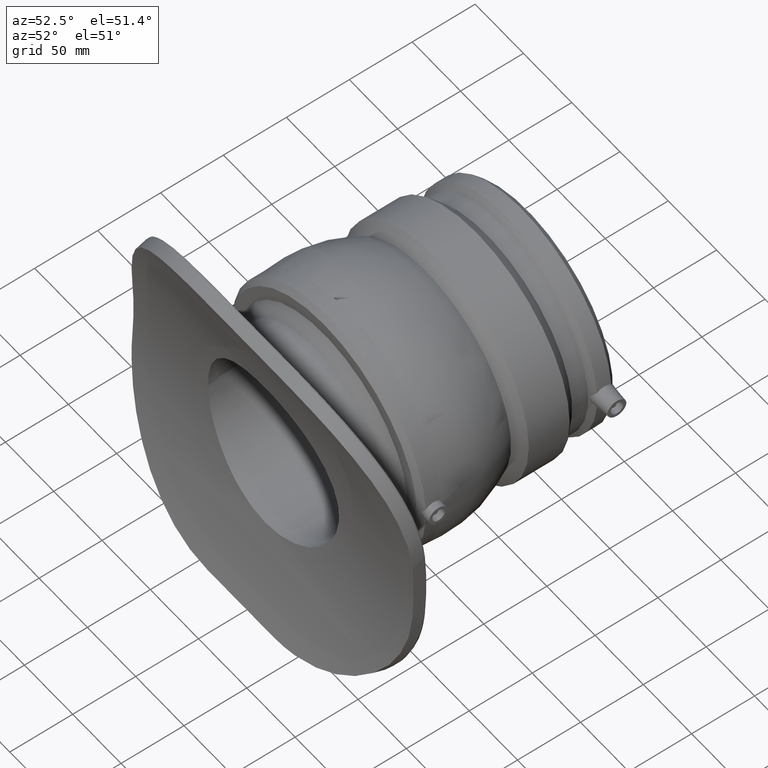
[diagram: clean part render]
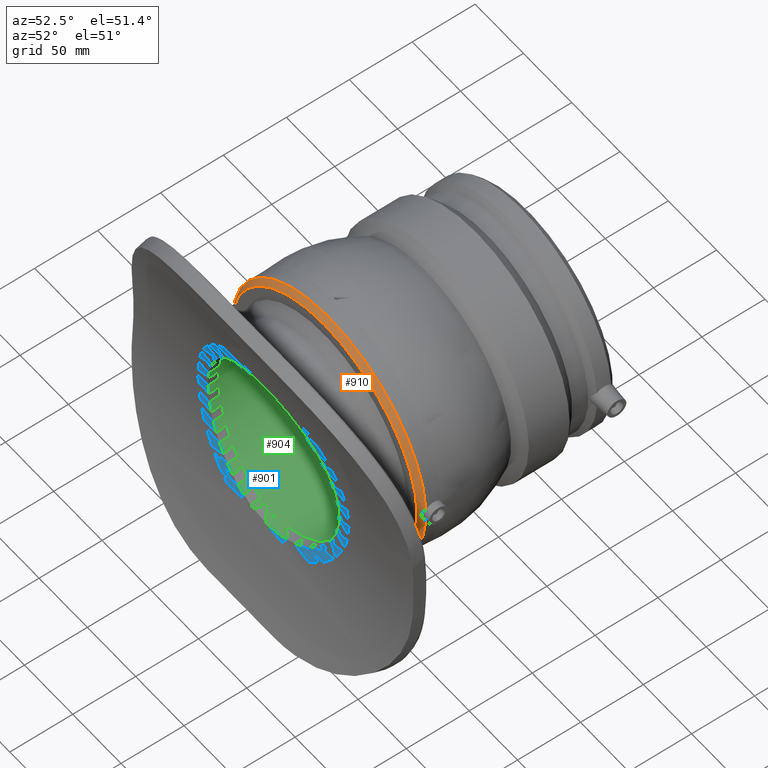
[diagram: same view with three faces highlighted in distinct colors, each labeled with its STEP entity id]
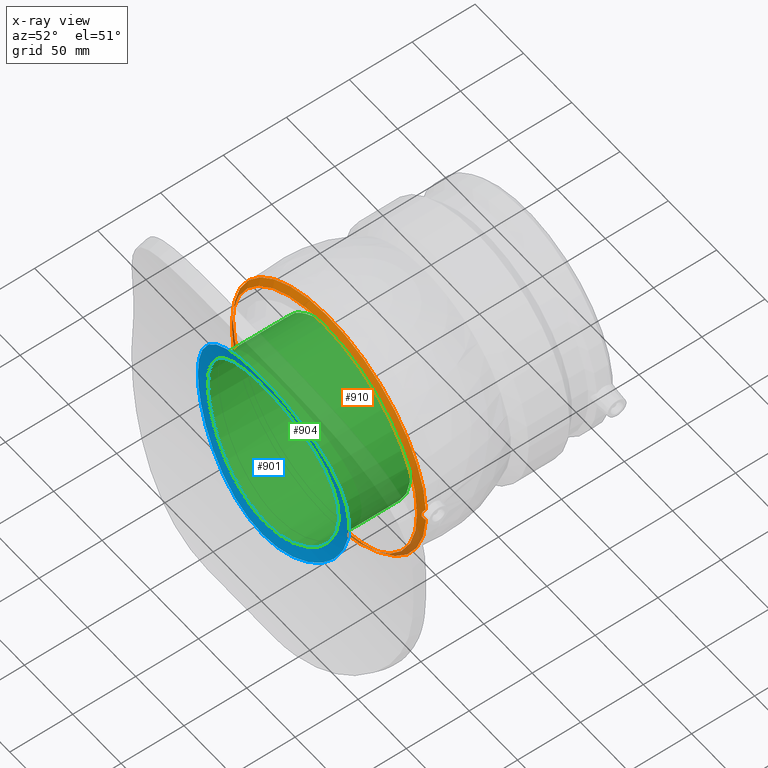
[diagram: x-ray of the same camera — body ghosted, the three highlighted faces saturated]
A machine part, auxiliary view with three faces highlighted in distinct colors.
The next image is the same camera in x-ray (body ghosted, the three faces saturated) — at least one of them is partly hidden behind the body in this view.
Their STEP definitions:

[orange] entity #910 — the highlighted conical surface has half-angle 45 deg.
#91=B_SPLINE_CURVE_WITH_KNOTS('',3,(#1431,#1432,#1433,#1434,#1435,#1436,
#1437,#1438,#1439,#1440,#1441,#1442,#1443,#1444),.UNSPECIFIED.,.F.,.F.,
(4,2,2,2,2,2,4),(1.43644840975488,1.48361921660514,1.75200094608469,2.02038267556424,
2.28876440504379,2.55714613452334,2.60431694137361),.UNSPECIFIED.);
#128=CONICAL_SURFACE('',#1004,98.,45.0000000000002);
#155=FACE_BOUND('',#308,.T.);
#217=FACE_OUTER_BOUND('',#307,.T.);
#307=EDGE_LOOP('',(#680,#681));
#308=EDGE_LOOP('',(#682));
#386=CIRCLE('',#1003,96.);
#387=CIRCLE('',#1005,100.);
#436=VERTEX_POINT('',#1429);
#437=VERTEX_POINT('',#1430);
#451=VERTEX_POINT('',#1651);
#521=EDGE_CURVE('',#436,#437,#91,.T.);
#538=EDGE_CURVE('',#451,#451,#386,.T.);
#539=EDGE_CURVE('',#436,#437,#387,.T.);
#680=ORIENTED_EDGE('',*,*,#521,.T.);
#681=ORIENTED_EDGE('',*,*,#539,.F.);
#682=ORIENTED_EDGE('',*,*,#538,.T.);
#910=ADVANCED_FACE('',(#217,#155),#128,.T.);
#1003=AXIS2_PLACEMENT_3D('',#1652,#1167,#1168);
#1004=AXIS2_PLACEMENT_3D('',#1653,#1169,#1170);
#1005=AXIS2_PLACEMENT_3D('',#1654,#1171,#1172);
#1167=DIRECTION('center_axis',(0.,1.,0.));
#1168=DIRECTION('ref_axis',(1.,0.,0.));
#1169=DIRECTION('center_axis',(0.,1.,0.));
#1170=DIRECTION('ref_axis',(-1.,0.,0.));
#1171=DIRECTION('center_axis',(0.,1.,0.));
#1172=DIRECTION('ref_axis',(1.,0.,0.));
#1429=CARTESIAN_POINT('',(99.8688193010284,3.99999999999999,-5.12044250221947));
#1430=CARTESIAN_POINT('',(99.8688193010284,3.99999999999999,5.12044250221947));
#1431=CARTESIAN_POINT('Ctrl Pts',(99.8688193010284,3.99999999999996,-5.1204425022195));
#1432=CARTESIAN_POINT('Ctrl Pts',(99.7818959861448,3.9082146630929,-5.02326245121099));
#1433=CARTESIAN_POINT('Ctrl Pts',(99.6973953848259,3.81883992168129,-4.92339550806257));
#1434=CARTESIAN_POINT('Ctrl Pts',(99.1494407067661,3.23841338256754,-4.2383978073542));
#1435=CARTESIAN_POINT('Ctrl Pts',(98.7157966441593,2.77422953518188,-3.49632662446755));
#1436=CARTESIAN_POINT('Ctrl Pts',(98.1226034603284,2.13608921980018,-1.82512773447306));
#1437=CARTESIAN_POINT('Ctrl Pts',(97.9644709677726,1.96447096777259,-0.894605764931831));
#1438=CARTESIAN_POINT('Ctrl Pts',(97.9644709677726,1.96447096777259,0.894605764931831));
#1439=CARTESIAN_POINT('Ctrl Pts',(98.1226034603284,2.13608921980018,1.82512773447307));
#1440=CARTESIAN_POINT('Ctrl Pts',(98.7157966441593,2.77422953518188,3.49632662446756));
#1441=CARTESIAN_POINT('Ctrl Pts',(99.1494407067661,3.23841338256754,4.2383978073542));
#1442=CARTESIAN_POINT('Ctrl Pts',(99.6973953848259,3.81883992168129,4.92339550806257));
#1443=CARTESIAN_POINT('Ctrl Pts',(99.7818959861448,3.9082146630929,5.023262451211));
#1444=CARTESIAN_POINT('Ctrl Pts',(99.8688193010284,3.99999999999997,5.12044250221951));
#1651=CARTESIAN_POINT('',(-96.,0.,0.));
#1652=CARTESIAN_POINT('Origin',(0.,0.,0.));
#1653=CARTESIAN_POINT('Origin',(0.,1.99999999999999,0.));
#1654=CARTESIAN_POINT('Origin',(0.,3.99999999999999,0.));

[blue] entity #901 — the highlighted cylindrical surface (partial cylindrical patch) has radius 355 mm, axis along (-1, 0, 0).
#95=B_SPLINE_CURVE_WITH_KNOTS('',3,(#1496,#1497,#1498,#1499,#1500,#1501,
#1502,#1503,#1504,#1505,#1506,#1507,#1508,#1509,#1510,#1511,#1512,#1513,
#1514,#1515,#1516,#1517,#1518,#1519,#1520,#1521,#1522,#1523,#1524,#1525,
#1526,#1527,#1528,#1529,#1530,#1531,#1532,#1533,#1534,#1535,#1536,#1537,
#1538,#1539,#1540,#1541,#1542,#1543,#1544,#1545,#1546,#1547,#1548,#1549,
#1550,#1551,#1552,#1553,#1554,#1555,#1556,#1557,#1558,#1559,#1560,#1561),
 .UNSPECIFIED.,.T.,.F.,(4,2,2,2,2,2,2,2,2,2,2,2,2,2,2,2,2,2,2,2,2,2,2,2,
2,2,2,2,2,2,2,2,4),(0.,1.48194512866162,2.96389025732324,4.44583538598486,
5.92778051464647,7.40960113700903,8.89142175937159,10.3732423817341,11.8550630040967,
13.3368836264593,14.8187042488218,16.3005248711844,17.7823454935469,19.2642906222086,
20.7462357508702,22.2281808795318,23.7101260081934,25.192071136855,26.6740162655166,
28.1559613941783,29.6379065228399,31.1197271452024,32.601547767565,34.0833683899276,
35.5651890122901,37.0470096346527,38.5288302570152,40.0106508793778,41.4924715017404,
42.974416630402,44.4563617590636,45.9383068877252,47.4202520163868),
 .UNSPECIFIED.);
#96=B_SPLINE_CURVE_WITH_KNOTS('',3,(#1563,#1564,#1565,#1566,#1567,#1568,
#1569,#1570,#1571,#1572,#1573,#1574,#1575,#1576,#1577,#1578,#1579,#1580,
#1581,#1582,#1583,#1584,#1585,#1586,#1587,#1588,#1589,#1590,#1591,#1592,
#1593,#1594,#1595,#1596,#1597,#1598,#1599,#1600,#1601,#1602,#1603,#1604,
#1605,#1606,#1607,#1608,#1609,#1610,#1611,#1612,#1613,#1614,#1615,#1616,
#1617,#1618,#1619,#1620,#1621,#1622,#1623,#1624,#1625,#1626,#1627,#1628),
 .UNSPECIFIED.,.T.,.F.,(4,2,2,2,2,2,2,2,2,2,2,2,2,2,2,2,2,2,2,2,2,2,2,2,
2,2,2,2,2,2,2,2,4),(0.,1.28418362988211,2.56836725976423,3.85255088964634,
5.13673451952846,6.42085779522608,7.70498107092371,8.98910434662134,10.273227622319,
11.5573508980166,12.8414741737142,14.1255974494118,15.4097207251095,16.6939043549916,
17.9780879848737,19.2622716147558,20.5464552446379,21.83063887452,23.1148225044022,
24.3990061342843,25.6831897641664,26.967313039864,28.2514363155616,29.5355595912593,
30.8196828669569,32.1038061426545,33.3879294183522,34.6720526940498,35.9561759697474,
37.2403595996295,38.5245432295116,39.8087268593938,41.0929104892759),
 .UNSPECIFIED.);
#145=FACE_BOUND('',#290,.T.);
#171=CYLINDRICAL_SURFACE('',#987,355.);
#209=FACE_OUTER_BOUND('',#289,.T.);
#289=EDGE_LOOP('',(#662));
#290=EDGE_LOOP('',(#663));
#442=VERTEX_POINT('',#1495);
#443=VERTEX_POINT('',#1562);
#529=EDGE_CURVE('',#442,#442,#95,.T.);
#530=EDGE_CURVE('',#443,#443,#96,.T.);
#662=ORIENTED_EDGE('',*,*,#529,.F.);
#663=ORIENTED_EDGE('',*,*,#530,.F.);
#901=ADVANCED_FACE('',(#209,#145),#171,.F.);
#987=AXIS2_PLACEMENT_3D('',#1494,#1135,#1136);
#1135=DIRECTION('center_axis',(-1.,0.,0.));
#1136=DIRECTION('ref_axis',(0.,0.,1.));
#1494=CARTESIAN_POINT('Origin',(145.,-395.4,0.));
#1495=CARTESIAN_POINT('',(0.,-49.1653396899727,-78.4));
#1496=CARTESIAN_POINT('Ctrl Pts',(0.,-49.1653396899727,-78.4));
#1497=CARTESIAN_POINT('Ctrl Pts',(-4.93981709553873,-49.1653396899727,-78.4));
#1498=CARTESIAN_POINT('Ctrl Pts',(-10.0429295583946,-49.0567577797567,-77.9256032869789));
#1499=CARTESIAN_POINT('Ctrl Pts',(-20.1835197370835,-48.6145397147042,-75.9334288267969));
#1500=CARTESIAN_POINT('Ctrl Pts',(-25.2211082487994,-48.2812542472113,-74.416137256067));
#1501=CARTESIAN_POINT('Ctrl Pts',(-34.874082278191,-47.4466689690377,-70.4106837251488));
#1502=CARTESIAN_POINT('Ctrl Pts',(-39.4974676030903,-46.9455282298066,-67.9193378352981));
#1503=CARTESIAN_POINT('Ctrl Pts',(-48.0434040826242,-45.8736953762481,-62.1684624555258));
#1504=CARTESIAN_POINT('Ctrl Pts',(-51.9658184584423,-45.3041028487263,-58.9085248316084));
#1505=CARTESIAN_POINT('Ctrl Pts',(-58.9082331842797,-44.2065023023353,-51.9661101057709));
#1506=CARTESIAN_POINT('Ctrl Pts',(-62.1681381732243,-43.6396685995384,-48.0438313762638));
#1507=CARTESIAN_POINT('Ctrl Pts',(-67.9191441202137,-42.5778585738288,-39.497810060868));
#1508=CARTESIAN_POINT('Ctrl Pts',(-70.4106394658792,-42.083916262806,-34.8742044407308));
#1509=CARTESIAN_POINT('Ctrl Pts',(-74.4162588020605,-41.2639012810846,-25.2207998282419));
#1510=CARTESIAN_POINT('Ctrl Pts',(-75.9335664016045,-40.9378707751718,-20.1830075627893));
#1511=CARTESIAN_POINT('Ctrl Pts',(-77.9256778524673,-40.5057822154889,-10.0423618735945));
#1512=CARTESIAN_POINT('Ctrl Pts',(-78.4,-40.4,-4.93940207454186));
#1513=CARTESIAN_POINT('Ctrl Pts',(-78.4,-40.4,4.93940207454186));
#1514=CARTESIAN_POINT('Ctrl Pts',(-77.9256778524673,-40.5057822154889,10.0423618735945));
#1515=CARTESIAN_POINT('Ctrl Pts',(-75.9335664016045,-40.9378707751718,20.1830075627893));
#1516=CARTESIAN_POINT('Ctrl Pts',(-74.4162588020606,-41.2639012810846,25.2207998282419));
#1517=CARTESIAN_POINT('Ctrl Pts',(-70.4106394658792,-42.083916262806,34.8742044407308));
#1518=CARTESIAN_POINT('Ctrl Pts',(-67.9191441202137,-42.5778585738288,39.497810060868));
#1519=CARTESIAN_POINT('Ctrl Pts',(-62.1681381732243,-43.6396685995384,48.0438313762638));
#1520=CARTESIAN_POINT('Ctrl Pts',(-58.9082331842797,-44.2065023023353,51.9661101057709));
#1521=CARTESIAN_POINT('Ctrl Pts',(-51.9658184584423,-45.3041028487263,58.9085248316084));
#1522=CARTESIAN_POINT('Ctrl Pts',(-48.0434040826242,-45.8736953762481,62.1684624555258));
#1523=CARTESIAN_POINT('Ctrl Pts',(-39.4974676030903,-46.9455282298066,67.9193378352981));
#1524=CARTESIAN_POINT('Ctrl Pts',(-34.8740822781909,-47.4466689690377,70.4106837251488));
#1525=CARTESIAN_POINT('Ctrl Pts',(-25.2211082487993,-48.2812542472112,74.416137256067));
#1526=CARTESIAN_POINT('Ctrl Pts',(-20.1835197370835,-48.6145397147042,75.9334288267969));
#1527=CARTESIAN_POINT('Ctrl Pts',(-10.0429295583946,-49.0567577797566,77.9256032869789));
#1528=CARTESIAN_POINT('Ctrl Pts',(-4.93981709553872,-49.1653396899727,78.4));
#1529=CARTESIAN_POINT('Ctrl Pts',(4.93981709553873,-49.1653396899727,78.4));
#1530=CARTESIAN_POINT('Ctrl Pts',(10.0429295583946,-49.0567577797567,77.9256032869789));
#1531=CARTESIAN_POINT('Ctrl Pts',(20.1835197370835,-48.6145397147042,75.9334288267969));
#1532=CARTESIAN_POINT('Ctrl Pts',(25.2211082487994,-48.2812542472112,74.416137256067));
#1533=CARTESIAN_POINT('Ctrl Pts',(34.874082278191,-47.4466689690377,70.4106837251488));
#1534=CARTESIAN_POINT('Ctrl Pts',(39.4974676030903,-46.9455282298066,67.9193378352981));
#1535=CARTESIAN_POINT('Ctrl Pts',(48.0434040826242,-45.8736953762481,62.1684624555258));
#1536=CARTESIAN_POINT('Ctrl Pts',(51.9658184584423,-45.3041028487263,58.9085248316084));
#1537=CARTESIAN_POINT('Ctrl Pts',(58.9082331842797,-44.2065023023353,51.9661101057709));
#1538=CARTESIAN_POINT('Ctrl Pts',(62.1681381732243,-43.6396685995384,48.0438313762638));
#1539=CARTESIAN_POINT('Ctrl Pts',(67.9191441202137,-42.5778585738288,39.497810060868));
#1540=CARTESIAN_POINT('Ctrl Pts',(70.4106394658792,-42.083916262806,34.8742044407308));
#1541=CARTESIAN_POINT('Ctrl Pts',(74.4162588020605,-41.2639012810846,25.2207998282419));
#1542=CARTESIAN_POINT('Ctrl Pts',(75.9335664016045,-40.9378707751718,20.1830075627893));
#1543=CARTESIAN_POINT('Ctrl Pts',(77.9256778524673,-40.5057822154889,10.0423618735946));
#1544=CARTESIAN_POINT('Ctrl Pts',(78.4,-40.4,4.93940207454188));
#1545=CARTESIAN_POINT('Ctrl Pts',(78.4,-40.4,-4.93940207454186));
#1546=CARTESIAN_POINT('Ctrl Pts',(77.9256778524673,-40.5057822154889,-10.0423618735945));
#1547=CARTESIAN_POINT('Ctrl Pts',(75.9335664016045,-40.9378707751718,-20.1830075627893));
#1548=CARTESIAN_POINT('Ctrl Pts',(74.4162588020606,-41.2639012810846,-25.2207998282419));
#1549=CARTESIAN_POINT('Ctrl Pts',(70.4106394658792,-42.083916262806,-34.8742044407308));
#1550=CARTESIAN_POINT('Ctrl Pts',(67.9191441202137,-42.5778585738288,-39.497810060868));
#1551=CARTESIAN_POINT('Ctrl Pts',(62.1681381732243,-43.6396685995384,-48.0438313762638));
#1552=CARTESIAN_POINT('Ctrl Pts',(58.9082331842798,-44.2065023023353,-51.9661101057709));
#1553=CARTESIAN_POINT('Ctrl Pts',(51.9658184584423,-45.3041028487263,-58.9085248316084));
#1554=CARTESIAN_POINT('Ctrl Pts',(48.0434040826242,-45.8736953762481,-62.1684624555258));
#1555=CARTESIAN_POINT('Ctrl Pts',(39.4974676030903,-46.9455282298066,-67.9193378352981));
#1556=CARTESIAN_POINT('Ctrl Pts',(34.8740822781909,-47.4466689690377,-70.4106837251489));
#1557=CARTESIAN_POINT('Ctrl Pts',(25.2211082487993,-48.2812542472113,-74.416137256067));
#1558=CARTESIAN_POINT('Ctrl Pts',(20.1835197370834,-48.6145397147042,-75.9334288267969));
#1559=CARTESIAN_POINT('Ctrl Pts',(10.0429295583946,-49.0567577797566,-77.9256032869789));
#1560=CARTESIAN_POINT('Ctrl Pts',(4.93981709553871,-49.1653396899727,-78.4));
#1561=CARTESIAN_POINT('Ctrl Pts',(-1.11022302462516E-15,-49.1653396899727,
-78.4));
#1562=CARTESIAN_POINT('',(0.,-46.9735371703234,-68.));
#1563=CARTESIAN_POINT('Ctrl Pts',(0.,-46.9735371703234,-68.));
#1564=CARTESIAN_POINT('Ctrl Pts',(4.28061209960705,-46.9735371703234,-68.));
#1565=CARTESIAN_POINT('Ctrl Pts',(8.70394721315377,-46.8925245465351,-67.5892869237947));
#1566=CARTESIAN_POINT('Ctrl Pts',(17.4961096786961,-46.562192984919,-65.8631653536506));
#1567=CARTESIAN_POINT('Ctrl Pts',(21.8650264282614,-46.3131232840869,-64.548164551849));
#1568=CARTESIAN_POINT('Ctrl Pts',(30.2386633185165,-45.6887696168532,-61.075103654211));
#1569=CARTESIAN_POINT('Ctrl Pts',(34.2502549563989,-45.3135933914119,-58.9142815416259));
#1570=CARTESIAN_POINT('Ctrl Pts',(41.6662210647222,-44.5104360279515,-53.9249344629819));
#1571=CARTESIAN_POINT('Ctrl Pts',(45.0704546924692,-44.0832789086014,-51.0960675489013));
#1572=CARTESIAN_POINT('Ctrl Pts',(51.0959259527379,-43.2595633579804,-45.0705962886325));
#1573=CARTESIAN_POINT('Ctrl Pts',(53.9247772365134,-42.8339536219612,-41.6664283101215));
#1574=CARTESIAN_POINT('Ctrl Pts',(58.9141880153766,-42.0364237674579,-34.2504204184892));
#1575=CARTESIAN_POINT('Ctrl Pts',(61.0750826352883,-41.6652901247154,-30.2387214201588));
#1576=CARTESIAN_POINT('Ctrl Pts',(64.5482240407459,-41.0491111089907,-21.8648755744737));
#1577=CARTESIAN_POINT('Ctrl Pts',(65.8632322771882,-40.8041076526875,-17.4958602756926));
#1578=CARTESIAN_POINT('Ctrl Pts',(67.5893230732144,-40.4794481900596,-8.70367159889857));
#1579=CARTESIAN_POINT('Ctrl Pts',(68.,-40.4,-4.2804109189921));
#1580=CARTESIAN_POINT('Ctrl Pts',(68.,-40.4,4.28041091899208));
#1581=CARTESIAN_POINT('Ctrl Pts',(67.5893230732144,-40.4794481900596,8.70367159889855));
#1582=CARTESIAN_POINT('Ctrl Pts',(65.8632322771882,-40.8041076526875,17.4958602756926));
#1583=CARTESIAN_POINT('Ctrl Pts',(64.5482240407459,-41.0491111089907,21.8648755744737));
#1584=CARTESIAN_POINT('Ctrl Pts',(61.0750826352883,-41.6652901247154,30.2387214201588));
#1585=CARTESIAN_POINT('Ctrl Pts',(58.9141880153766,-42.0364237674579,34.2504204184892));
#1586=CARTESIAN_POINT('Ctrl Pts',(53.9247772365134,-42.8339536219612,41.6664283101215));
#1587=CARTESIAN_POINT('Ctrl Pts',(51.095925952738,-43.2595633579804,45.0705962886325));
#1588=CARTESIAN_POINT('Ctrl Pts',(45.0704546924692,-44.0832789086014,51.0960675489012));
#1589=CARTESIAN_POINT('Ctrl Pts',(41.6662210647222,-44.5104360279515,53.9249344629819));
#1590=CARTESIAN_POINT('Ctrl Pts',(34.2502549563989,-45.3135933914119,58.9142815416259));
#1591=CARTESIAN_POINT('Ctrl Pts',(30.2386633185165,-45.6887696168532,61.0751036542109));
#1592=CARTESIAN_POINT('Ctrl Pts',(21.8650264282614,-46.3131232840869,64.548164551849));
#1593=CARTESIAN_POINT('Ctrl Pts',(17.4961096786961,-46.562192984919,65.8631653536506));
#1594=CARTESIAN_POINT('Ctrl Pts',(8.70394721315378,-46.8925245465351,67.5892869237947));
#1595=CARTESIAN_POINT('Ctrl Pts',(4.28061209960705,-46.9735371703234,68.));
#1596=CARTESIAN_POINT('Ctrl Pts',(-4.28061209960704,-46.9735371703234,68.));
#1597=CARTESIAN_POINT('Ctrl Pts',(-8.70394721315374,-46.8925245465351,67.5892869237947));
#1598=CARTESIAN_POINT('Ctrl Pts',(-17.4961096786961,-46.562192984919,65.8631653536506));
#1599=CARTESIAN_POINT('Ctrl Pts',(-21.8650264282614,-46.3131232840869,64.548164551849));
#1600=CARTESIAN_POINT('Ctrl Pts',(-30.2386633185165,-45.6887696168532,61.075103654211));
#1601=CARTESIAN_POINT('Ctrl Pts',(-34.2502549563989,-45.3135933914119,58.9142815416259));
#1602=CARTESIAN_POINT('Ctrl Pts',(-41.6662210647221,-44.5104360279515,53.9249344629819));
#1603=CARTESIAN_POINT('Ctrl Pts',(-45.0704546924691,-44.0832789086014,51.0960675489013));
#1604=CARTESIAN_POINT('Ctrl Pts',(-51.0959259527379,-43.2595633579803,45.0705962886326));
#1605=CARTESIAN_POINT('Ctrl Pts',(-53.9247772365133,-42.8339536219612,41.6664283101216));
#1606=CARTESIAN_POINT('Ctrl Pts',(-58.9141880153766,-42.0364237674579,34.2504204184892));
#1607=CARTESIAN_POINT('Ctrl Pts',(-61.0750826352882,-41.6652901247154,30.2387214201589));
#1608=CARTESIAN_POINT('Ctrl Pts',(-64.5482240407458,-41.0491111089907,21.8648755744738));
#1609=CARTESIAN_POINT('Ctrl Pts',(-65.8632322771882,-40.8041076526875,17.4958602756927));
#1610=CARTESIAN_POINT('Ctrl Pts',(-67.5893230732144,-40.4794481900596,8.70367159889862));
#1611=CARTESIAN_POINT('Ctrl Pts',(-67.9999999999999,-40.4,4.28041091899212));
#1612=CARTESIAN_POINT('Ctrl Pts',(-67.9999999999999,-40.4,-4.28041091899209));
#1613=CARTESIAN_POINT('Ctrl Pts',(-67.5893230732144,-40.4794481900596,-8.70367159889859));
#1614=CARTESIAN_POINT('Ctrl Pts',(-65.8632322771882,-40.8041076526875,-17.4958602756926));
#1615=CARTESIAN_POINT('Ctrl Pts',(-64.5482240407459,-41.0491111089907,-21.8648755744737));
#1616=CARTESIAN_POINT('Ctrl Pts',(-61.0750826352883,-41.6652901247154,-30.2387214201588));
#1617=CARTESIAN_POINT('Ctrl Pts',(-58.9141880153766,-42.0364237674579,-34.2504204184892));
#1618=CARTESIAN_POINT('Ctrl Pts',(-53.9247772365134,-42.8339536219612,-41.6664283101215));
#1619=CARTESIAN_POINT('Ctrl Pts',(-51.095925952738,-43.2595633579803,-45.0705962886325));
#1620=CARTESIAN_POINT('Ctrl Pts',(-45.0704546924692,-44.0832789086014,-51.0960675489012));
#1621=CARTESIAN_POINT('Ctrl Pts',(-41.6662210647222,-44.5104360279515,-53.9249344629819));
#1622=CARTESIAN_POINT('Ctrl Pts',(-34.2502549563989,-45.3135933914119,-58.9142815416259));
#1623=CARTESIAN_POINT('Ctrl Pts',(-30.2386633185165,-45.6887696168532,-61.0751036542109));
#1624=CARTESIAN_POINT('Ctrl Pts',(-21.8650264282614,-46.3131232840869,-64.548164551849));
#1625=CARTESIAN_POINT('Ctrl Pts',(-17.4961096786961,-46.562192984919,-65.8631653536506));
#1626=CARTESIAN_POINT('Ctrl Pts',(-8.70394721315378,-46.8925245465351,-67.5892869237947));
#1627=CARTESIAN_POINT('Ctrl Pts',(-4.28061209960705,-46.9735371703234,-68.));
#1628=CARTESIAN_POINT('Ctrl Pts',(2.22044604925031E-15,-46.9735371703234,
-68.));

[green] entity #904 — the highlighted cylindrical surface (bore or boss wall) has radius 68 mm, axis along (0, 1, 0).
#96=B_SPLINE_CURVE_WITH_KNOTS('',3,(#1563,#1564,#1565,#1566,#1567,#1568,
#1569,#1570,#1571,#1572,#1573,#1574,#1575,#1576,#1577,#1578,#1579,#1580,
#1581,#1582,#1583,#1584,#1585,#1586,#1587,#1588,#1589,#1590,#1591,#1592,
#1593,#1594,#1595,#1596,#1597,#1598,#1599,#1600,#1601,#1602,#1603,#1604,
#1605,#1606,#1607,#1608,#1609,#1610,#1611,#1612,#1613,#1614,#1615,#1616,
#1617,#1618,#1619,#1620,#1621,#1622,#1623,#1624,#1625,#1626,#1627,#1628),
 .UNSPECIFIED.,.T.,.F.,(4,2,2,2,2,2,2,2,2,2,2,2,2,2,2,2,2,2,2,2,2,2,2,2,
2,2,2,2,2,2,2,2,4),(0.,1.28418362988211,2.56836725976423,3.85255088964634,
5.13673451952846,6.42085779522608,7.70498107092371,8.98910434662134,10.273227622319,
11.5573508980166,12.8414741737142,14.1255974494118,15.4097207251095,16.6939043549916,
17.9780879848737,19.2622716147558,20.5464552446379,21.83063887452,23.1148225044022,
24.3990061342843,25.6831897641664,26.967313039864,28.2514363155616,29.5355595912593,
30.8196828669569,32.1038061426545,33.3879294183522,34.6720526940498,35.9561759697474,
37.2403595996295,38.5245432295116,39.8087268593938,41.0929104892759),
 .UNSPECIFIED.);
#149=FACE_BOUND('',#296,.T.);
#172=CYLINDRICAL_SURFACE('',#993,68.);
#211=FACE_OUTER_BOUND('',#295,.T.);
#295=EDGE_LOOP('',(#668));
#296=EDGE_LOOP('',(#669));
#381=CIRCLE('',#992,68.);
#443=VERTEX_POINT('',#1562);
#446=VERTEX_POINT('',#1635);
#530=EDGE_CURVE('',#443,#443,#96,.T.);
#533=EDGE_CURVE('',#446,#446,#381,.T.);
#668=ORIENTED_EDGE('',*,*,#530,.T.);
#669=ORIENTED_EDGE('',*,*,#533,.T.);
#904=ADVANCED_FACE('',(#211,#149),#172,.F.);
#992=AXIS2_PLACEMENT_3D('',#1636,#1145,#1146);
#993=AXIS2_PLACEMENT_3D('',#1637,#1147,#1148);
#1145=DIRECTION('center_axis',(0.,1.,0.));
#1146=DIRECTION('ref_axis',(1.,0.,0.));
#1147=DIRECTION('center_axis',(0.,1.,0.));
#1148=DIRECTION('ref_axis',(-1.,0.,0.));
#1562=CARTESIAN_POINT('',(0.,-46.9735371703234,-68.));
#1563=CARTESIAN_POINT('Ctrl Pts',(0.,-46.9735371703234,-68.));
#1564=CARTESIAN_POINT('Ctrl Pts',(4.28061209960705,-46.9735371703234,-68.));
#1565=CARTESIAN_POINT('Ctrl Pts',(8.70394721315377,-46.8925245465351,-67.5892869237947));
#1566=CARTESIAN_POINT('Ctrl Pts',(17.4961096786961,-46.562192984919,-65.8631653536506));
#1567=CARTESIAN_POINT('Ctrl Pts',(21.8650264282614,-46.3131232840869,-64.548164551849));
#1568=CARTESIAN_POINT('Ctrl Pts',(30.2386633185165,-45.6887696168532,-61.075103654211));
#1569=CARTESIAN_POINT('Ctrl Pts',(34.2502549563989,-45.3135933914119,-58.9142815416259));
#1570=CARTESIAN_POINT('Ctrl Pts',(41.6662210647222,-44.5104360279515,-53.9249344629819));
#1571=CARTESIAN_POINT('Ctrl Pts',(45.0704546924692,-44.0832789086014,-51.0960675489013));
#1572=CARTESIAN_POINT('Ctrl Pts',(51.0959259527379,-43.2595633579804,-45.0705962886325));
#1573=CARTESIAN_POINT('Ctrl Pts',(53.9247772365134,-42.8339536219612,-41.6664283101215));
#1574=CARTESIAN_POINT('Ctrl Pts',(58.9141880153766,-42.0364237674579,-34.2504204184892));
#1575=CARTESIAN_POINT('Ctrl Pts',(61.0750826352883,-41.6652901247154,-30.2387214201588));
#1576=CARTESIAN_POINT('Ctrl Pts',(64.5482240407459,-41.0491111089907,-21.8648755744737));
#1577=CARTESIAN_POINT('Ctrl Pts',(65.8632322771882,-40.8041076526875,-17.4958602756926));
#1578=CARTESIAN_POINT('Ctrl Pts',(67.5893230732144,-40.4794481900596,-8.70367159889857));
#1579=CARTESIAN_POINT('Ctrl Pts',(68.,-40.4,-4.2804109189921));
#1580=CARTESIAN_POINT('Ctrl Pts',(68.,-40.4,4.28041091899208));
#1581=CARTESIAN_POINT('Ctrl Pts',(67.5893230732144,-40.4794481900596,8.70367159889855));
#1582=CARTESIAN_POINT('Ctrl Pts',(65.8632322771882,-40.8041076526875,17.4958602756926));
#1583=CARTESIAN_POINT('Ctrl Pts',(64.5482240407459,-41.0491111089907,21.8648755744737));
#1584=CARTESIAN_POINT('Ctrl Pts',(61.0750826352883,-41.6652901247154,30.2387214201588));
#1585=CARTESIAN_POINT('Ctrl Pts',(58.9141880153766,-42.0364237674579,34.2504204184892));
#1586=CARTESIAN_POINT('Ctrl Pts',(53.9247772365134,-42.8339536219612,41.6664283101215));
#1587=CARTESIAN_POINT('Ctrl Pts',(51.095925952738,-43.2595633579804,45.0705962886325));
#1588=CARTESIAN_POINT('Ctrl Pts',(45.0704546924692,-44.0832789086014,51.0960675489012));
#1589=CARTESIAN_POINT('Ctrl Pts',(41.6662210647222,-44.5104360279515,53.9249344629819));
#1590=CARTESIAN_POINT('Ctrl Pts',(34.2502549563989,-45.3135933914119,58.9142815416259));
#1591=CARTESIAN_POINT('Ctrl Pts',(30.2386633185165,-45.6887696168532,61.0751036542109));
#1592=CARTESIAN_POINT('Ctrl Pts',(21.8650264282614,-46.3131232840869,64.548164551849));
#1593=CARTESIAN_POINT('Ctrl Pts',(17.4961096786961,-46.562192984919,65.8631653536506));
#1594=CARTESIAN_POINT('Ctrl Pts',(8.70394721315378,-46.8925245465351,67.5892869237947));
#1595=CARTESIAN_POINT('Ctrl Pts',(4.28061209960705,-46.9735371703234,68.));
#1596=CARTESIAN_POINT('Ctrl Pts',(-4.28061209960704,-46.9735371703234,68.));
#1597=CARTESIAN_POINT('Ctrl Pts',(-8.70394721315374,-46.8925245465351,67.5892869237947));
#1598=CARTESIAN_POINT('Ctrl Pts',(-17.4961096786961,-46.562192984919,65.8631653536506));
#1599=CARTESIAN_POINT('Ctrl Pts',(-21.8650264282614,-46.3131232840869,64.548164551849));
#1600=CARTESIAN_POINT('Ctrl Pts',(-30.2386633185165,-45.6887696168532,61.075103654211));
#1601=CARTESIAN_POINT('Ctrl Pts',(-34.2502549563989,-45.3135933914119,58.9142815416259));
#1602=CARTESIAN_POINT('Ctrl Pts',(-41.6662210647221,-44.5104360279515,53.9249344629819));
#1603=CARTESIAN_POINT('Ctrl Pts',(-45.0704546924691,-44.0832789086014,51.0960675489013));
#1604=CARTESIAN_POINT('Ctrl Pts',(-51.0959259527379,-43.2595633579803,45.0705962886326));
#1605=CARTESIAN_POINT('Ctrl Pts',(-53.9247772365133,-42.8339536219612,41.6664283101216));
#1606=CARTESIAN_POINT('Ctrl Pts',(-58.9141880153766,-42.0364237674579,34.2504204184892));
#1607=CARTESIAN_POINT('Ctrl Pts',(-61.0750826352882,-41.6652901247154,30.2387214201589));
#1608=CARTESIAN_POINT('Ctrl Pts',(-64.5482240407458,-41.0491111089907,21.8648755744738));
#1609=CARTESIAN_POINT('Ctrl Pts',(-65.8632322771882,-40.8041076526875,17.4958602756927));
#1610=CARTESIAN_POINT('Ctrl Pts',(-67.5893230732144,-40.4794481900596,8.70367159889862));
#1611=CARTESIAN_POINT('Ctrl Pts',(-67.9999999999999,-40.4,4.28041091899212));
#1612=CARTESIAN_POINT('Ctrl Pts',(-67.9999999999999,-40.4,-4.28041091899209));
#1613=CARTESIAN_POINT('Ctrl Pts',(-67.5893230732144,-40.4794481900596,-8.70367159889859));
#1614=CARTESIAN_POINT('Ctrl Pts',(-65.8632322771882,-40.8041076526875,-17.4958602756926));
#1615=CARTESIAN_POINT('Ctrl Pts',(-64.5482240407459,-41.0491111089907,-21.8648755744737));
#1616=CARTESIAN_POINT('Ctrl Pts',(-61.0750826352883,-41.6652901247154,-30.2387214201588));
#1617=CARTESIAN_POINT('Ctrl Pts',(-58.9141880153766,-42.0364237674579,-34.2504204184892));
#1618=CARTESIAN_POINT('Ctrl Pts',(-53.9247772365134,-42.8339536219612,-41.6664283101215));
#1619=CARTESIAN_POINT('Ctrl Pts',(-51.095925952738,-43.2595633579803,-45.0705962886325));
#1620=CARTESIAN_POINT('Ctrl Pts',(-45.0704546924692,-44.0832789086014,-51.0960675489012));
#1621=CARTESIAN_POINT('Ctrl Pts',(-41.6662210647222,-44.5104360279515,-53.9249344629819));
#1622=CARTESIAN_POINT('Ctrl Pts',(-34.2502549563989,-45.3135933914119,-58.9142815416259));
#1623=CARTESIAN_POINT('Ctrl Pts',(-30.2386633185165,-45.6887696168532,-61.0751036542109));
#1624=CARTESIAN_POINT('Ctrl Pts',(-21.8650264282614,-46.3131232840869,-64.548164551849));
#1625=CARTESIAN_POINT('Ctrl Pts',(-17.4961096786961,-46.562192984919,-65.8631653536506));
#1626=CARTESIAN_POINT('Ctrl Pts',(-8.70394721315378,-46.8925245465351,-67.5892869237947));
#1627=CARTESIAN_POINT('Ctrl Pts',(-4.28061209960705,-46.9735371703234,-68.));
#1628=CARTESIAN_POINT('Ctrl Pts',(2.22044604925031E-15,-46.9735371703234,
-68.));
#1635=CARTESIAN_POINT('',(-68.,16.1600000000001,0.));
#1636=CARTESIAN_POINT('Origin',(0.,16.1600000000001,0.));
#1637=CARTESIAN_POINT('Origin',(0.,-54.4277173056956,0.));